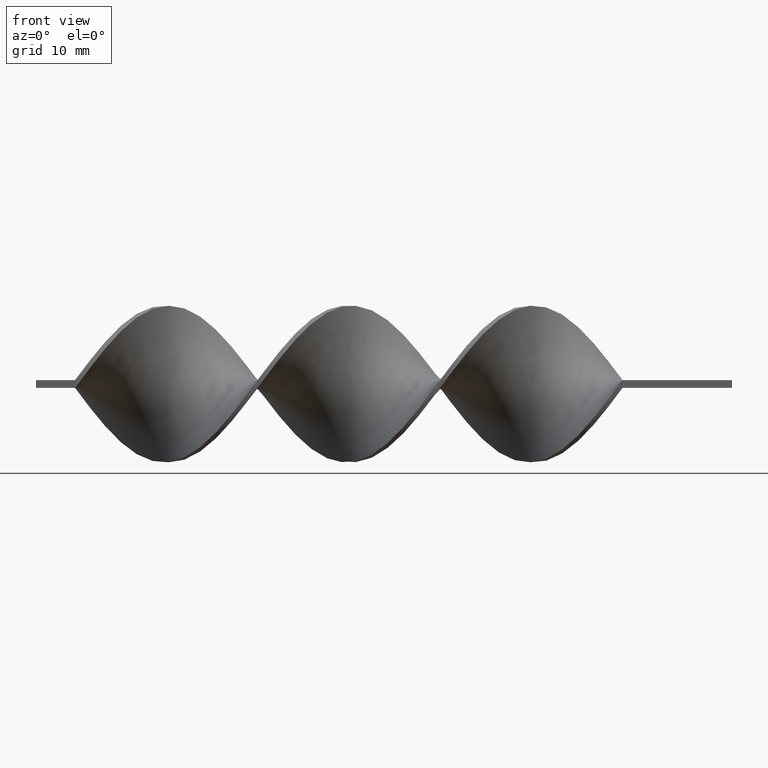
[diagram: clean part render]
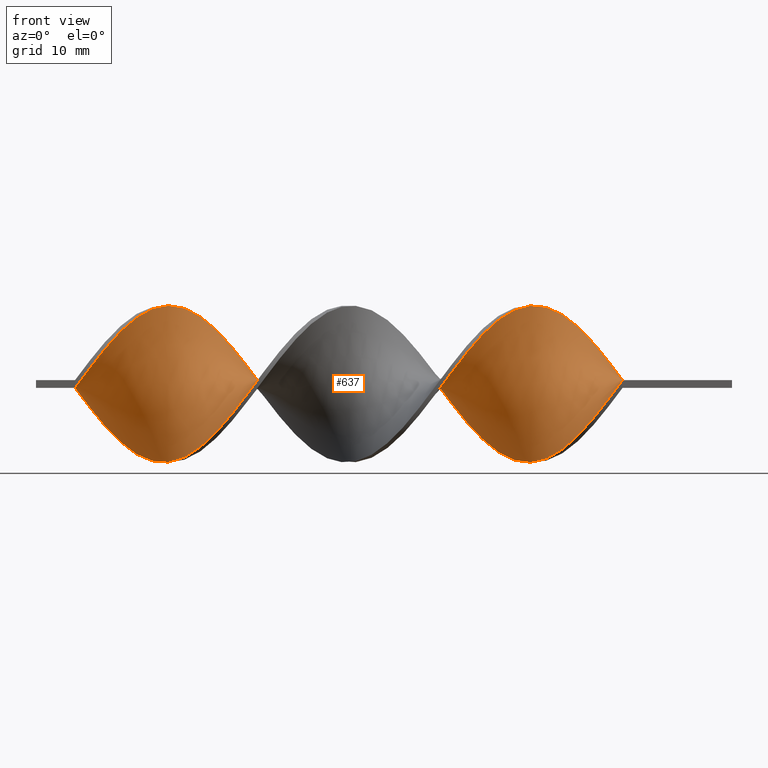
[diagram: same view with one face highlighted and labeled with its STEP entity id]
A machine part, front view. The second image highlights one B-rep face of the part: STEP entity #637.
In plain terms, the highlighted face is a freeform B-spline surface patch.
Its self-contained STEP definition (entity closure, byte-faithful):
#9 = CARTESIAN_POINT ( 'NONE',  ( -43.61538461538461320, 7.056934957752321047, 7.206086637525138450 ) ) ;
#15 = CARTESIAN_POINT ( 'NONE',  ( -57.07692307692307310, -8.622198670510213603, 5.089959733264296737 ) ) ;
#22 = CARTESIAN_POINT ( 'NONE',  ( -16.69230769230769695, 9.240231675844615467, 4.043035270954601579 ) ) ;
#30 = CARTESIAN_POINT ( 'NONE',  ( -59.76923076923077360, -9.939289008388872304, 1.714219832222610984 ) ) ;
#38 = CARTESIAN_POINT ( 'NONE',  ( -58.87179487179486870, -9.589760342116740333, 2.878627551588612388 ) ) ;
#48 = CARTESIAN_POINT ( 'NONE',  ( -59.76923076923077360, 10.06071099161113125, -0.7142198322226109841 ) ) ;
#52 = CARTESIAN_POINT ( 'NONE',  ( -69.64102564102564941, -4.013556991768067128, -9.172859983332880773 ) ) ;
#57 = CARTESIAN_POINT ( 'NONE',  ( -77.71794871794872961, -7.056934957752318383, 7.206086637525142891 ) ) ;
#60 = CARTESIAN_POINT ( 'NONE',  ( -74.12820512820510999, 1.921697069441246519, -9.901267393559574970 ) ) ;
#63 = CARTESIAN_POINT ( 'NONE',  ( -19.38461538461538325, 7.153546152590613438, 7.005481956493501805 ) ) ;
#65 = CARTESIAN_POINT ( 'NONE',  ( -30.15384615384615330, -6.092139400258385962, 7.945806285570986560 ) ) ;
#68 = CARTESIAN_POINT ( 'NONE',  ( -45.41025641025640880, 5.127343842764457982, 8.685525933616828453 ) ) ;
#73 = CARTESIAN_POINT ( 'NONE',  ( -32.84615384615384670, -8.576402663910499768, 5.307855779119662998 ) ) ;
#74 = CARTESIAN_POINT ( 'NONE',  ( -29.25641025641025905, -5.127343842764454429, 8.685525933616832006 ) ) ;
#77 = CARTESIAN_POINT ( 'NONE',  ( -26.56410256410256210, 0.7090123655042004369, -9.987357081108200418 ) ) ;
#82 = CARTESIAN_POINT ( 'NONE',  ( -47.20512820512820440, -1.921697069441249628, -9.901267393559574970 ) ) ;
#83 = CARTESIAN_POINT ( 'NONE',  ( -67.84615384615385381, 5.269155534364730720, 8.513871032302141373 ) ) ;
#94 =( BOUNDED_SURFACE ( )  B_SPLINE_SURFACE ( 1, 2, ( 
 ( #990, #847, #379, #730, #1249, #217, #722, #1356, #866, #373, #103, #635, #1590, #1487, #974, #611, #1232, #1102, #1479, #234, #739, #112, #618, #366, #1109, #1608, #998, #873, #162, #286, #1035, #154, #522, #9, #1266, #1518, #1253, #1381, #652, #528, #385, #145, #909, #759, #1021, #1136, #1506, #1142, #15, #544, #38, #30, #536, #894, #134, #1150, #1400, #397, #763, #1028, #1527, #887, #646, #1409, #1534, #640, #1388, #901, #265, #277, #1128, #258, #271, #405, #1014, #1513, #413, #392, #776 ),
 ( #1275, #1393, #1259, #22, #515, #139, #666, #659, #768, #783, #1009, #1283, #1159, #1185, #1580, #1571, #171, #74, #65, #1563, #1544, #1193, #571, #561, #1433, #1319, #450, #580, #441, #1072, #318, #197, #1291, #711, #687, #926, #1064, #944, #817, #1204, #301, #1168, #702, #553, #918, #953, #589, #677, #1449, #1442, #330, #48, #695, #826, #935, #1080, #1416, #1331, #1310, #207, #83, #292, #310, #790, #1046, #422, #1424, #800, #1177, #1301, #182, #57, #1055, #1553, #432, #810, #190, #356, #870 ) ),
 .UNSPECIFIED., .F., .F., .F. ) 
 B_SPLINE_SURFACE_WITH_KNOTS ( ( 2, 2 ),
 ( 3, 2, 2, 2, 2, 2, 2, 2, 2, 2, 2, 2, 2, 2, 2, 2, 2, 2, 2, 2, 2, 2, 2, 2, 2, 2, 2, 2, 2, 2, 2, 2, 2, 2, 2, 2, 2, 2, 2, 3 ),
 ( 0.000000000000000000, 1.000000000000000000 ),
 ( 0.000000000000000000, 0.01923076923076923184, 0.03846153846153846367, 0.05769230769230769551, 0.07692307692307692735, 0.09615384615384615918, 0.1153846153846153910, 0.1346153846153846090, 0.1538461538461538547, 0.1730769230769230727, 0.1923076923076923184, 0.2115384615384615363, 0.2307692307692307820, 0.2500000000000000000, 0.2692307692307692180, 0.2884615384615384359, 0.3076923076923077094, 0.3269230769230769273, 0.3461538461538461453, 0.3653846153846153633, 0.3846153846153846367, 0.4038461538461538547, 0.4230769230769230727, 0.4423076923076922906, 0.4615384615384615641, 0.4807692307692307820, 0.5000000000000000000, 0.5192307692307692735, 0.5384615384615384359, 0.5576923076923077094, 0.5769230769230768718, 0.5961538461538461453, 0.6153846153846154188, 0.6346153846153845812, 0.6538461538461538547, 0.6730769230769231282, 0.6923076923076922906, 0.7115384615384615641, 0.7307692307692307265, 0.7500000000000000000 ),
 .UNSPECIFIED. ) 
 GEOMETRIC_REPRESENTATION_ITEM ( )  RATIONAL_B_SPLINE_SURFACE ( (
 ( 1.000000000000000000, 0.9927088740980539727, 1.000000000000000000, 0.9927088740980539727, 1.000000000000000000, 0.9927088740980539727, 1.000000000000000000, 0.9927088740980539727, 1.000000000000000000, 0.9927088740980539727, 1.000000000000000000, 0.9927088740980539727, 1.000000000000000000, 0.9927088740980539727, 1.000000000000000000, 0.9927088740980539727, 1.000000000000000000, 0.9927088740980539727, 1.000000000000000000, 0.9927088740980539727, 1.000000000000000000, 0.9927088740980539727, 1.000000000000000000, 0.9927088740980539727, 1.000000000000000000, 0.9927088740980539727, 1.000000000000000000, 0.9927088740980539727, 1.000000000000000000, 0.9927088740980539727, 1.000000000000000000, 0.9927088740980539727, 1.000000000000000000, 0.9927088740980539727, 1.000000000000000000, 0.9927088740980539727, 1.000000000000000000, 0.9927088740980539727, 1.000000000000000000, 0.9927088740980539727, 1.000000000000000000, 0.9927088740980539727, 1.000000000000000000, 0.9927088740980539727, 1.000000000000000000, 0.9927088740980539727, 1.000000000000000000, 0.9927088740980539727, 1.000000000000000000, 0.9927088740980539727, 1.000000000000000000, 0.9927088740980539727, 1.000000000000000000, 0.9927088740980539727, 1.000000000000000000, 0.9927088740980539727, 1.000000000000000000, 0.9927088740980539727, 1.000000000000000000, 0.9927088740980539727, 1.000000000000000000, 0.9927088740980539727, 1.000000000000000000, 0.9927088740980539727, 1.000000000000000000, 0.9927088740980539727, 1.000000000000000000, 0.9927088740980539727, 1.000000000000000000, 0.9927088740980539727, 1.000000000000000000, 0.9927088740980539727, 1.000000000000000000, 0.9927088740980539727, 1.000000000000000000, 0.9927088740980539727, 1.000000000000000000, 0.9927088740980539727, 1.000000000000000000),
 ( 1.000000000000000000, 0.9927088740980539727, 1.000000000000000000, 0.9927088740980539727, 1.000000000000000000, 0.9927088740980539727, 1.000000000000000000, 0.9927088740980539727, 1.000000000000000000, 0.9927088740980539727, 1.000000000000000000, 0.9927088740980539727, 1.000000000000000000, 0.9927088740980539727, 1.000000000000000000, 0.9927088740980539727, 1.000000000000000000, 0.9927088740980539727, 1.000000000000000000, 0.9927088740980539727, 1.000000000000000000, 0.9927088740980539727, 1.000000000000000000, 0.9927088740980539727, 1.000000000000000000, 0.9927088740980539727, 1.000000000000000000, 0.9927088740980539727, 1.000000000000000000, 0.9927088740980539727, 1.000000000000000000, 0.9927088740980539727, 1.000000000000000000, 0.9927088740980539727, 1.000000000000000000, 0.9927088740980539727, 1.000000000000000000, 0.9927088740980539727, 1.000000000000000000, 0.9927088740980539727, 1.000000000000000000, 0.9927088740980539727, 1.000000000000000000, 0.9927088740980539727, 1.000000000000000000, 0.9927088740980539727, 1.000000000000000000, 0.9927088740980539727, 1.000000000000000000, 0.9927088740980539727, 1.000000000000000000, 0.9927088740980539727, 1.000000000000000000, 0.9927088740980539727, 1.000000000000000000, 0.9927088740980539727, 1.000000000000000000, 0.9927088740980539727, 1.000000000000000000, 0.9927088740980539727, 1.000000000000000000, 0.9927088740980539727, 1.000000000000000000, 0.9927088740980539727, 1.000000000000000000, 0.9927088740980539727, 1.000000000000000000, 0.9927088740980539727, 1.000000000000000000, 0.9927088740980539727, 1.000000000000000000, 0.9927088740980539727, 1.000000000000000000, 0.9927088740980539727, 1.000000000000000000, 0.9927088740980539727, 1.000000000000000000, 0.9927088740980539727, 1.000000000000000000) ) ) 
 REPRESENTATION_ITEM ( '' )  SURFACE ( )  );
#97 = CARTESIAN_POINT ( 'NONE',  ( -16.69230769230769340, -9.597441021197470334, -3.101151636102497555 ) ) ;
#99 = CARTESIAN_POINT ( 'NONE',  ( -65.15384615384614619, 8.004165665175815292, 6.136884195573979461 ) ) ;
#103 = CARTESIAN_POINT ( 'NONE',  ( -22.97435897435897090, -4.013556991768067128, -9.172859983332880773 ) ) ;
#109 = CARTESIAN_POINT ( 'NONE',  ( -40.92307692307691980, -8.622198670510215379, -5.089959733264289632 ) ) ;
#112 = CARTESIAN_POINT ( 'NONE',  ( -32.84615384615384670, 8.004165665175813515, -6.136884195573980350 ) ) ;
#113 = CARTESIAN_POINT ( 'NONE',  ( -76.82051282051281760, 5.269155534364728055, -8.513871032302143149 ) ) ;
#116 = CARTESIAN_POINT ( 'NONE',  ( -53.48717948717948900, 6.092139400258383297, -7.945806285570988337 ) ) ;
#134 = CARTESIAN_POINT ( 'NONE',  ( -62.46153846153845990, -9.829076006404301680, -1.907685734162551494 ) ) ;
#139 = CARTESIAN_POINT ( 'NONE',  ( -18.48717948717948545, 8.004165665175815292, 6.136884195573979461 ) ) ;
#145 = CARTESIAN_POINT ( 'NONE',  ( -50.79487179487178850, -1.921697069441245631, 9.901267393559576746 ) ) ;
#154 = CARTESIAN_POINT ( 'NONE',  ( -41.82051282051281760, 8.576402663910497992, 5.307855779119661221 ) ) ;
#162 = CARTESIAN_POINT ( 'NONE',  ( -39.12820512820512420, 9.829076006404298127, 1.907685734162548385 ) ) ;
#170 = CARTESIAN_POINT ( 'NONE',  ( -17.58974358974358765, 8.622198670510211826, 5.089959733264290520 ) ) ;
#171 = CARTESIAN_POINT ( 'NONE',  ( -28.35897435897435770, -4.013556991768063575, 9.172859983332880773 ) ) ;
#175 = CARTESIAN_POINT ( 'NONE',  ( -54.38461538461538680, -6.302926640005405368, 7.874079717413033030 ) ) ;
#181 = CARTESIAN_POINT ( 'NONE',  ( -15.79487179487179205, 9.589760342116738556, 2.878627551588603062 ) ) ;
#182 = CARTESIAN_POINT ( 'NONE',  ( -76.82051282051281760, -6.092139400258385962, 7.945806285570986560 ) ) ;
#186 = CARTESIAN_POINT ( 'NONE',  ( -70.53846153846153300, -2.899770140771675830, -9.660194033048927764 ) ) ;
#189 = CARTESIAN_POINT ( 'NONE',  ( -13.99999999999999822, 9.999999999999998224, 0.5000000000000000000 ) ) ;
#190 = CARTESIAN_POINT ( 'NONE',  ( -82.20512820512820440, -9.829076006404299903, 1.907685734162555047 ) ) ;
#193 = CARTESIAN_POINT ( 'NONE',  ( -31.05128205128205465, 6.302926640005407144, -7.874079717413029478 ) ) ;
#197 = CARTESIAN_POINT ( 'NONE',  ( -41.82051282051281760, -8.004165665175818845, -6.136884195573978573 ) ) ;
#201 = CARTESIAN_POINT ( 'NONE',  ( -36.43589743589743790, 9.939289008388868751, -1.714219832222609874 ) ) ;
#206 = CARTESIAN_POINT ( 'NONE',  ( -80.41025641025640880, -9.086921842553984163, 4.204503707611081609 ) ) ;
#207 = CARTESIAN_POINT ( 'NONE',  ( -66.94871794871794179, 6.302926640005411585, 7.874079717413027701 ) ) ;
#208 = VERTEX_POINT ( 'NONE', #535 ) ;
#210 = CARTESIAN_POINT ( 'NONE',  ( -22.97435897435897090, -4.013556991768067128, -9.172859983332880773 ) ) ;
#214 = CARTESIAN_POINT ( 'NONE',  ( -83.10256410256410220, -10.06071099161113480, 0.7142198322226099849 ) ) ;
#217 = CARTESIAN_POINT ( 'NONE',  ( -18.48717948717948545, -8.576402663910501545, -5.307855779119662110 ) ) ;
#222 = CARTESIAN_POINT ( 'NONE',  ( -13.99999999999999645, -10.00000000000000178, 0.5000000000000000000 ) ) ;
#223 = CARTESIAN_POINT ( 'NONE',  ( -40.02564102564102200, -9.240231675844619019, -4.043035270954598914 ) ) ;
#234 = CARTESIAN_POINT ( 'NONE',  ( -31.05128205128205821, 6.302926640005407144, -7.874079717413028590 ) ) ;
#239 = CARTESIAN_POINT ( 'NONE',  ( -54.38461538461538680, 7.056934957752313053, -7.206086637525145555 ) ) ;
#244 = CARTESIAN_POINT ( 'NONE',  ( -83.10256410256410220, 9.939289008388868751, -1.714219832222609874 ) ) ;
#258 = CARTESIAN_POINT ( 'NONE',  ( -77.71794871794872961, 6.302926640005407144, -7.874079717413028590 ) ) ;
#265 = CARTESIAN_POINT ( 'NONE',  ( -75.02564102564102200, 3.078540749082645966, -9.527464870375414563 ) ) ;
#271 = CARTESIAN_POINT ( 'NONE',  ( -78.61538461538461320, 7.153546152590610774, -7.005481956493504470 ) ) ;
#273 = VERTEX_POINT ( 'NONE', #1265 ) ;
#277 = CARTESIAN_POINT ( 'NONE',  ( -75.92307692307693401, 4.235384428724049855, -9.153662347191257709 ) ) ;
#280 = VECTOR ( 'NONE', #612, 1000.000000000000000 ) ;
#282 = B_SPLINE_CURVE_WITH_KNOTS ( 'NONE', 3,
 ( #753, #1123, #1215, #484 ),
 .UNSPECIFIED., .F., .F.,
 ( 4, 4 ),
 ( 0.000000000000000000, 1.000000000000000000 ),
 .UNSPECIFIED. ) ;
#286 = CARTESIAN_POINT ( 'NONE',  ( -40.02564102564102200, 9.597441021197468558, 3.101151636102494003 ) ) ;
#292 = CARTESIAN_POINT ( 'NONE',  ( -68.74358974358973740, 4.235384428724050743, 9.153662347191257709 ) ) ;
#297 = CARTESIAN_POINT ( 'NONE',  ( -19.38461538461538325, -7.816668810831409964, -6.256971208322401168 ) ) ;
#301 = CARTESIAN_POINT ( 'NONE',  ( -49.89743589743589069, 1.701721239602248970, -9.866820400852880368 ) ) ;
#304 = CARTESIAN_POINT ( 'NONE',  ( -57.07692307692307310, -8.622198670510213603, 5.089959733264296737 ) ) ;
#310 = CARTESIAN_POINT ( 'NONE',  ( -69.64102564102564941, 3.078540749082649519, 9.527464870375414563 ) ) ;
#311 = ORIENTED_EDGE ( 'NONE', *, *, #1118, .F. ) ;
#313 = CARTESIAN_POINT ( 'NONE',  ( -20.28205128205128460, -7.056934957752321935, -7.206086637525141114 ) ) ;
#318 = CARTESIAN_POINT ( 'NONE',  ( -40.92307692307691980, -8.622198670510215379, -5.089959733264289632 ) ) ;
#319 = VERTEX_POINT ( 'NONE', #694 ) ;
#322 = CARTESIAN_POINT ( 'NONE',  ( -27.46153846153846345, 1.921697069441246519, -9.901267393559574970 ) ) ;
#327 = CARTESIAN_POINT ( 'NONE',  ( -36.43589743589743790, -10.06071099161113480, 0.7142198322226099849 ) ) ;
#328 = EDGE_CURVE ( 'NONE', #1038, #208, #1153, .T. ) ;
#330 = CARTESIAN_POINT ( 'NONE',  ( -58.87179487179486870, 9.829076006404296351, -1.907685734162560820 ) ) ;
#333 = CARTESIAN_POINT ( 'NONE',  ( -51.69230769230769340, -3.078540749082649963, 9.527464870375414563 ) ) ;
#337 = CARTESIAN_POINT ( 'NONE',  ( -64.25641025641024839, 8.622198670510211826, 5.089959733264290520 ) ) ;
#346 = CARTESIAN_POINT ( 'NONE',  ( -50.79487179487178850, 2.899770140771668281, -9.660194033048929541 ) ) ;
#353 = CARTESIAN_POINT ( 'NONE',  ( -18.48717948717948545, -8.576402663910501545, -5.307855779119662110 ) ) ;
#355 = CARTESIAN_POINT ( 'NONE',  ( -75.02564102564102200, -4.013556991768063575, 9.172859983332880773 ) ) ;
#356 = CARTESIAN_POINT ( 'NONE',  ( -83.10256410256410220, -10.06071099161113480, 0.7142198322226098739 ) ) ;
#362 = CARTESIAN_POINT ( 'NONE',  ( -79.51282051282051100, -8.576402663910499768, 5.307855779119662998 ) ) ;
#366 = CARTESIAN_POINT ( 'NONE',  ( -34.64102564102564230, 9.240231675844613690, -4.043035270954605132 ) ) ;
#369 = CARTESIAN_POINT ( 'NONE',  ( -76.82051282051281760, -6.092139400258385962, 7.945806285570986560 ) ) ;
#373 = CARTESIAN_POINT ( 'NONE',  ( -22.07692307692308376, -5.127343842764454429, -8.685525933616832006 ) ) ;
#374 = CARTESIAN_POINT ( 'NONE',  ( -77.71794871794874382, 6.302926640005407144, -7.874079717413029478 ) ) ;
#379 = CARTESIAN_POINT ( 'NONE',  ( -15.79487179487179205, -9.829076006404301680, -1.907685734162551494 ) ) ;
#385 = CARTESIAN_POINT ( 'NONE',  ( -49.89743589743589069, -0.7090123655041976614, 9.987357081108202195 ) ) ;
#392 = CARTESIAN_POINT ( 'NONE',  ( -83.10256410256410220, 9.939289008388868751, -1.714219832222609874 ) ) ;
#397 = CARTESIAN_POINT ( 'NONE',  ( -65.15384615384614619, -8.576402663910501545, -5.307855779119662110 ) ) ;
#405 = CARTESIAN_POINT ( 'NONE',  ( -79.51282051282051100, 8.004165665175813515, -6.136884195573980350 ) ) ;
#413 = CARTESIAN_POINT ( 'NONE',  ( -82.20512820512820440, 9.589760342116736780, -2.878627551588606615 ) ) ;
#417 = CARTESIAN_POINT ( 'NONE',  ( -41.82051282051281760, 8.576402663910497992, 5.307855779119661221 ) ) ;
#422 = CARTESIAN_POINT ( 'NONE',  ( -72.33333333333332860, -0.5036723384328420927, 10.07344676865682764 ) ) ;
#427 = CARTESIAN_POINT ( 'NONE',  ( -52.58974358974359120, -4.235384428724044525, 9.153662347191259485 ) ) ;
#432 = CARTESIAN_POINT ( 'NONE',  ( -80.41025641025640880, -9.086921842553984163, 4.204503707611081609 ) ) ;
#435 = CARTESIAN_POINT ( 'NONE',  ( -63.35897435897436480, -9.597441021197470334, -3.101151636102497555 ) ) ;
#440 = CARTESIAN_POINT ( 'NONE',  ( -33.74358974358974450, -9.086921842553984163, 4.204503707611081609 ) ) ;
#441 = CARTESIAN_POINT ( 'NONE',  ( -39.12820512820512420, -9.589760342116745662, -2.878627551588600397 ) ) ;
#444 = CARTESIAN_POINT ( 'NONE',  ( -56.17948717948717530, -8.004165665175817068, 6.136884195573983014 ) ) ;
#446 =( BOUNDED_CURVE ( )  B_SPLINE_CURVE ( 2, ( #222, #1218, #1474, #97, #1594, #353, #297, #313, #453, #565, #210, #1041, #1075, #938, #77, #322, #1323, #1559, #956, #193, #583, #820, #574, #698, #1549, #201, #705, #681, #1428, #1574, #714, #417, #557, #1189, #1172, #68, #922, #1539, #1060, #1198, #803, #1453, #333, #427, #947, #175, #831, #444, #304, #931, #813, #1420, #1305, #1334, #1067, #435, #1207, #548, #794, #1296, #1313, #1437, #52, #186, #691, #1051, #1181, #60, #1567, #1445, #113, #374, #493, #1243, #867, #592, #754, #244, #723 ),
 .UNSPECIFIED., .F., .T. ) 
 B_SPLINE_CURVE_WITH_KNOTS ( ( 3, 2, 2, 2, 2, 2, 2, 2, 2, 2, 2, 2, 2, 2, 2, 2, 2, 2, 2, 2, 2, 2, 2, 2, 2, 2, 2, 2, 2, 2, 2, 2, 2, 2, 2, 2, 2, 2, 2, 3 ),
 ( 0.000000000000000000, 0.01923076923076923184, 0.03846153846153846367, 0.05769230769230768857, 0.07692307692307692735, 0.09615384615384615918, 0.1153846153846153771, 0.1346153846153846090, 0.1538461538461538547, 0.1730769230769230449, 0.1923076923076923184, 0.2115384615384615363, 0.2307692307692307543, 0.2500000000000000000, 0.2692307692307692180, 0.2884615384615384359, 0.3076923076923077094, 0.3269230769230769273, 0.3461538461538460898, 0.3653846153846153633, 0.3846153846153846367, 0.4038461538461539102, 0.4230769230769230727, 0.4423076923076922906, 0.4615384615384615086, 0.4807692307692307820, 0.5000000000000000000, 0.5192307692307692735, 0.5384615384615384359, 0.5576923076923077094, 0.5769230769230768718, 0.5961538461538461453, 0.6153846153846154188, 0.6346153846153845812, 0.6538461538461538547, 0.6730769230769230171, 0.6923076923076921796, 0.7115384615384615641, 0.7307692307692307265, 0.7500000000000000000 ),
 .UNSPECIFIED. ) 
 CURVE ( )  GEOMETRIC_REPRESENTATION_ITEM ( )  RATIONAL_B_SPLINE_CURVE ( ( 1.000000000000000000, 0.9927088740980539727, 1.000000000000000000, 0.9927088740980539727, 1.000000000000000000, 0.9927088740980539727, 1.000000000000000000, 0.9927088740980539727, 1.000000000000000000, 0.9927088740980539727, 1.000000000000000000, 0.9927088740980539727, 1.000000000000000000, 0.9927088740980539727, 1.000000000000000000, 0.9927088740980539727, 1.000000000000000000, 0.9927088740980539727, 1.000000000000000000, 0.9927088740980539727, 1.000000000000000000, 0.9927088740980539727, 1.000000000000000000, 0.9927088740980539727, 1.000000000000000000, 0.9927088740980539727, 1.000000000000000000, 0.9927088740980539727, 1.000000000000000000, 0.9927088740980539727, 1.000000000000000000, 0.9927088740980539727, 1.000000000000000000, 0.9927088740980539727, 1.000000000000000000, 0.9927088740980539727, 1.000000000000000000, 0.9927088740980539727, 1.000000000000000000, 0.9927088740980539727, 1.000000000000000000, 0.9927088740980539727, 1.000000000000000000, 0.9927088740980539727, 1.000000000000000000, 0.9927088740980539727, 1.000000000000000000, 0.9927088740980539727, 1.000000000000000000, 0.9927088740980539727, 1.000000000000000000, 0.9927088740980539727, 1.000000000000000000, 0.9927088740980539727, 1.000000000000000000, 0.9927088740980539727, 1.000000000000000000, 0.9927088740980539727, 1.000000000000000000, 0.9927088740980539727, 1.000000000000000000, 0.9927088740980539727, 1.000000000000000000, 0.9927088740980539727, 1.000000000000000000, 0.9927088740980539727, 1.000000000000000000, 0.9927088740980539727, 1.000000000000000000, 0.9927088740980539727, 1.000000000000000000, 0.9927088740980539727, 1.000000000000000000, 0.9927088740980539727, 1.000000000000000000, 0.9927088740980539727, 1.000000000000000000, 0.9927088740980539727, 1.000000000000000000 ) ) 
 REPRESENTATION_ITEM ( '' )  );
#450 = CARTESIAN_POINT ( 'NONE',  ( -37.33333333333332860, -10.00000000000000178, -0.4999999999999988343 ) ) ;
#453 = CARTESIAN_POINT ( 'NONE',  ( -21.17948717948717885, -6.092139400258388626, -7.945806285570984784 ) ) ;
#457 = CARTESIAN_POINT ( 'NONE',  ( -57.97435897435897090, 9.597441021197465005, -3.101151636102501552 ) ) ;
#469 = CARTESIAN_POINT ( 'NONE',  ( -57.07692307692307310, 9.086921842553978834, -4.204503707611086938 ) ) ;
#481 = CARTESIAN_POINT ( 'NONE',  ( -63.35897435897436480, 9.240231675844613690, 4.043035270954601579 ) ) ;
#484 = CARTESIAN_POINT ( 'NONE',  ( -84.00000000000000000, -10.00000000000000178, -0.4999999999999988343 ) ) ;
#489 = CARTESIAN_POINT ( 'NONE',  ( -42.71794871794872250, -7.153546152590616991, -7.005481956493500029 ) ) ;
#493 = CARTESIAN_POINT ( 'NONE',  ( -78.61538461538461320, 7.153546152590610774, -7.005481956493504470 ) ) ;
#496 = CARTESIAN_POINT ( 'NONE',  ( -74.12820512820510999, -2.899770140771674498, 9.660194033048927764 ) ) ;
#515 = CARTESIAN_POINT ( 'NONE',  ( -17.58974358974358765, 8.622198670510211826, 5.089959733264290520 ) ) ;
#522 = CARTESIAN_POINT ( 'NONE',  ( -42.71794871794872250, 7.816668810831409964, 6.256971208322399391 ) ) ;
#528 = CARTESIAN_POINT ( 'NONE',  ( -49.00000000000000711, 0.5036723384328420927, 10.07344676865682764 ) ) ;
#535 = CARTESIAN_POINT ( 'NONE',  ( -84.00000000000000000, -10.00000000000000178, -0.4999999999999988343 ) ) ;
#536 = CARTESIAN_POINT ( 'NONE',  ( -60.66666666666666430, -10.00000000000000178, 0.5000000000000000000 ) ) ;
#544 = CARTESIAN_POINT ( 'NONE',  ( -57.97435897435897090, -9.240231675844617243, 4.043035270954606020 ) ) ;
#548 = CARTESIAN_POINT ( 'NONE',  ( -65.15384615384614619, -8.576402663910501545, -5.307855779119662110 ) ) ;
#552 = CARTESIAN_POINT ( 'NONE',  ( -26.56410256410256210, -1.701721239602257185, 9.866820400852878592 ) ) ;
#553 = CARTESIAN_POINT ( 'NONE',  ( -52.58974358974358410, 5.127343842764449100, -8.685525933616833782 ) ) ;
#557 = CARTESIAN_POINT ( 'NONE',  ( -42.71794871794872250, 7.816668810831409964, 6.256971208322399391 ) ) ;
#561 = CARTESIAN_POINT ( 'NONE',  ( -34.64102564102564230, -9.597441021197468558, 3.101151636102500664 ) ) ;
#565 = CARTESIAN_POINT ( 'NONE',  ( -22.07692307692308020, -5.127343842764455317, -8.685525933616832006 ) ) ;
#570 = CARTESIAN_POINT ( 'NONE',  ( -24.76923076923076650, 0.7090123655042038786, 9.987357081108200418 ) ) ;
#571 = CARTESIAN_POINT ( 'NONE',  ( -33.74358974358974450, -9.086921842553984163, 4.204503707611081609 ) ) ;
#574 = CARTESIAN_POINT ( 'NONE',  ( -33.74358974358974450, 8.622198670510211826, -5.089959733264292296 ) ) ;
#580 = CARTESIAN_POINT ( 'NONE',  ( -38.23076923076922640, -9.939289008388872304, -1.714219832222602991 ) ) ;
#583 = CARTESIAN_POINT ( 'NONE',  ( -31.94871794871794535, 7.153546152590610774, -7.005481956493504470 ) ) ;
#588 = CARTESIAN_POINT ( 'NONE',  ( -60.66666666666666430, 9.999999999999998224, 0.5000000000000000000 ) ) ;
#589 = CARTESIAN_POINT ( 'NONE',  ( -55.28205128205128460, 7.816668810831404635, -6.256971208322405609 ) ) ;
#592 = CARTESIAN_POINT ( 'NONE',  ( -81.30769230769232081, 9.240231675844611914, -4.043035270954604243 ) ) ;
#595 = EDGE_CURVE ( 'NONE', #319, #208, #282, .T. ) ;
#607 = CARTESIAN_POINT ( 'NONE',  ( -62.46153846153845990, 9.589760342116738556, 2.878627551588603062 ) ) ;
#611 = CARTESIAN_POINT ( 'NONE',  ( -27.46153846153846345, 1.921697069441246519, -9.901267393559574970 ) ) ;
#612 = DIRECTION ( 'NONE',  ( 8.673617379884035472E-17, -1.000000000000000000, 0.000000000000000000 ) ) ;
#615 = CARTESIAN_POINT ( 'NONE',  ( -46.30769230769230660, -3.078540749082653072, -9.527464870375414563 ) ) ;
#618 = CARTESIAN_POINT ( 'NONE',  ( -33.74358974358974450, 8.622198670510211826, -5.089959733264292296 ) ) ;
#620 = CARTESIAN_POINT ( 'NONE',  ( -13.99999999999999822, 9.999999999999998224, 0.5000000000000000000 ) ) ;
#622 = CARTESIAN_POINT ( 'NONE',  ( -68.74358974358973740, 4.235384428724049855, 9.153662347191257709 ) ) ;
#635 = CARTESIAN_POINT ( 'NONE',  ( -23.87179487179487580, -2.899770140771675830, -9.660194033048927764 ) ) ;
#637 = ADVANCED_FACE ( 'NONE', ( #1093 ), #94, .T. ) ;
#640 = CARTESIAN_POINT ( 'NONE',  ( -72.33333333333332860, -0.5036723384328433140, -10.07344676865682764 ) ) ;
#646 = CARTESIAN_POINT ( 'NONE',  ( -69.64102564102564941, -4.013556991768067128, -9.172859983332880773 ) ) ;
#647 = EDGE_LOOP ( 'NONE', ( #811, #1137, #1478, #311 ) ) ;
#652 = CARTESIAN_POINT ( 'NONE',  ( -48.10256410256410220, 1.701721239602261404, 9.866820400852876816 ) ) ;
#659 = CARTESIAN_POINT ( 'NONE',  ( -20.28205128205128460, 6.302926640005411585, 7.874079717413027701 ) ) ;
#666 = CARTESIAN_POINT ( 'NONE',  ( -19.38461538461538325, 7.153546152590613438, 7.005481956493501805 ) ) ;
#677 = CARTESIAN_POINT ( 'NONE',  ( -56.17948717948717530, 8.576402663910496216, -5.307855779119664774 ) ) ;
#681 = CARTESIAN_POINT ( 'NONE',  ( -38.23076923076922640, 10.06071099161113125, 0.7142198322226029905 ) ) ;
#686 = CARTESIAN_POINT ( 'NONE',  ( -30.15384615384615330, -6.092139400258385962, 7.945806285570986560 ) ) ;
#687 = CARTESIAN_POINT ( 'NONE',  ( -44.51282051282051100, -5.269155534364732496, -8.513871032302141373 ) ) ;
#691 = CARTESIAN_POINT ( 'NONE',  ( -71.43589743589743080, -1.701721239602260516, -9.866820400852878592 ) ) ;
#694 = CARTESIAN_POINT ( 'NONE',  ( -84.00000000000000000, 9.999999999999998224, -0.5000000000000012212 ) ) ;
#695 = CARTESIAN_POINT ( 'NONE',  ( -60.66666666666666430, 9.999999999999998224, 0.5000000000000000000 ) ) ;
#698 = CARTESIAN_POINT ( 'NONE',  ( -34.64102564102564230, 9.240231675844611914, -4.043035270954604243 ) ) ;
#701 = CARTESIAN_POINT ( 'NONE',  ( -22.07692307692308020, 4.235384428724049855, 9.153662347191257709 ) ) ;
#702 = CARTESIAN_POINT ( 'NONE',  ( -51.69230769230769340, 4.013556991768062687, -9.172859983332880773 ) ) ;
#705 = CARTESIAN_POINT ( 'NONE',  ( -37.33333333333332860, 9.999999999999998224, -0.5000000000000012212 ) ) ;
#710 = CARTESIAN_POINT ( 'NONE',  ( -66.94871794871795601, 6.302926640005410697, 7.874079717413027701 ) ) ;
#711 = CARTESIAN_POINT ( 'NONE',  ( -43.61538461538461320, -6.302926640005416026, -7.874079717413025925 ) ) ;
#714 = CARTESIAN_POINT ( 'NONE',  ( -40.92307692307691980, 9.086921842553980611, 4.204503707611078944 ) ) ;
#722 = CARTESIAN_POINT ( 'NONE',  ( -19.38461538461538325, -7.816668810831409964, -6.256971208322401168 ) ) ;
#723 = CARTESIAN_POINT ( 'NONE',  ( -84.00000000000000000, 9.999999999999998224, -0.5000000000000012212 ) ) ;
#725 = CARTESIAN_POINT ( 'NONE',  ( -13.99999999999999822, 9.999999999999998224, 0.5000000000000000000 ) ) ;
#726 = CARTESIAN_POINT ( 'NONE',  ( -73.23076923076924061, -1.701721239602257185, 9.866820400852878592 ) ) ;
#730 = CARTESIAN_POINT ( 'NONE',  ( -16.69230769230769695, -9.597441021197470334, -3.101151636102497555 ) ) ;
#734 = CARTESIAN_POINT ( 'NONE',  ( -45.41025641025640880, -4.235384428724056960, -9.153662347191254156 ) ) ;
#739 = CARTESIAN_POINT ( 'NONE',  ( -31.94871794871794535, 7.153546152590610774, -7.005481956493504470 ) ) ;
#743 = CARTESIAN_POINT ( 'NONE',  ( -66.05128205128204399, 7.153546152590613438, 7.005481956493501805 ) ) ;
#753 = CARTESIAN_POINT ( 'NONE',  ( -84.00000000000000000, 9.999999999999998224, -0.5000000000000012212 ) ) ;
#754 = CARTESIAN_POINT ( 'NONE',  ( -82.20512820512820440, 9.589760342116736780, -2.878627551588606615 ) ) ;
#759 = CARTESIAN_POINT ( 'NONE',  ( -52.58974358974358410, -4.235384428724044525, 9.153662347191259485 ) ) ;
#763 = CARTESIAN_POINT ( 'NONE',  ( -66.05128205128204399, -7.816668810831409964, -6.256971208322401168 ) ) ;
#768 = CARTESIAN_POINT ( 'NONE',  ( -21.17948717948717885, 5.269155534364730720, 8.513871032302141373 ) ) ;
#776 = CARTESIAN_POINT ( 'NONE',  ( -84.00000000000000000, 9.999999999999998224, -0.5000000000000012212 ) ) ;
#783 = CARTESIAN_POINT ( 'NONE',  ( -22.07692307692308376, 4.235384428724050743, 9.153662347191257709 ) ) ;
#790 = CARTESIAN_POINT ( 'NONE',  ( -70.53846153846153300, 1.921697069441247852, 9.901267393559574970 ) ) ;
#794 = CARTESIAN_POINT ( 'NONE',  ( -66.05128205128204399, -7.816668810831409964, -6.256971208322401168 ) ) ;
#799 = CARTESIAN_POINT ( 'NONE',  ( -20.28205128205128460, 6.302926640005410697, 7.874079717413027701 ) ) ;
#800 = CARTESIAN_POINT ( 'NONE',  ( -74.12820512820512420, -2.899770140771674498, 9.660194033048927764 ) ) ;
#803 = CARTESIAN_POINT ( 'NONE',  ( -49.89743589743589069, -0.7090123655041976614, 9.987357081108202195 ) ) ;
#810 = CARTESIAN_POINT ( 'NONE',  ( -81.30769230769233502, -9.597441021197468558, 3.101151636102500664 ) ) ;
#811 = ORIENTED_EDGE ( 'NONE', *, *, #1165, .F. ) ;
#813 = CARTESIAN_POINT ( 'NONE',  ( -58.87179487179486870, -9.589760342116740333, 2.878627551588612388 ) ) ;
#817 = CARTESIAN_POINT ( 'NONE',  ( -48.10256410256410220, -0.7090123655042099848, -9.987357081108202195 ) ) ;
#820 = CARTESIAN_POINT ( 'NONE',  ( -32.84615384615384670, 8.004165665175813515, -6.136884195573980350 ) ) ;
#825 = CARTESIAN_POINT ( 'NONE',  ( -37.33333333333332860, -10.00000000000000178, -0.4999999999999988343 ) ) ;
#826 = CARTESIAN_POINT ( 'NONE',  ( -61.56410256410256920, 9.939289008388868751, 1.714219832222605433 ) ) ;
#831 = CARTESIAN_POINT ( 'NONE',  ( -55.28205128205128460, -7.153546152590610774, 7.005481956493506246 ) ) ;
#847 = CARTESIAN_POINT ( 'NONE',  ( -14.89743589743589602, -10.06071099161113480, -0.7142198322226053220 ) ) ;
#854 = CARTESIAN_POINT ( 'NONE',  ( -43.61538461538461320, -6.302926640005415138, -7.874079717413025925 ) ) ;
#862 = CARTESIAN_POINT ( 'NONE',  ( -41.82051282051281760, -8.004165665175818845, -6.136884195573978573 ) ) ;
#866 = CARTESIAN_POINT ( 'NONE',  ( -21.17948717948717885, -6.092139400258388626, -7.945806285570984784 ) ) ;
#867 = CARTESIAN_POINT ( 'NONE',  ( -80.41025641025640880, 8.622198670510211826, -5.089959733264292296 ) ) ;
#870 = CARTESIAN_POINT ( 'NONE',  ( -84.00000000000000000, -10.00000000000000178, -0.4999999999999988343 ) ) ;
#873 = CARTESIAN_POINT ( 'NONE',  ( -38.23076923076922640, 10.06071099161113125, 0.7142198322226029905 ) ) ;
#887 = CARTESIAN_POINT ( 'NONE',  ( -68.74358974358973740, -5.127343842764454429, -8.685525933616832006 ) ) ;
#894 = CARTESIAN_POINT ( 'NONE',  ( -61.56410256410256920, -10.06071099161113480, -0.7142198322226053220 ) ) ;
#901 = CARTESIAN_POINT ( 'NONE',  ( -74.12820512820512420, 1.921697069441246519, -9.901267393559574970 ) ) ;
#909 = CARTESIAN_POINT ( 'NONE',  ( -51.69230769230769340, -3.078540749082649963, 9.527464870375414563 ) ) ;
#917 = CARTESIAN_POINT ( 'NONE',  ( -14.89743589743589602, 9.939289008388868751, 1.714219832222605433 ) ) ;
#918 = CARTESIAN_POINT ( 'NONE',  ( -53.48717948717948900, 6.092139400258383297, -7.945806285570988337 ) ) ;
#922 = CARTESIAN_POINT ( 'NONE',  ( -46.30769230769230660, 4.013556991768065352, 9.172859983332880773 ) ) ;
#926 = CARTESIAN_POINT ( 'NONE',  ( -45.41025641025640880, -4.235384428724057848, -9.153662347191254156 ) ) ;
#931 = CARTESIAN_POINT ( 'NONE',  ( -57.97435897435897090, -9.240231675844615467, 4.043035270954605132 ) ) ;
#935 = CARTESIAN_POINT ( 'NONE',  ( -62.46153846153845990, 9.589760342116738556, 2.878627551588603062 ) ) ;
#938 = CARTESIAN_POINT ( 'NONE',  ( -25.66666666666666785, -0.5036723384328433140, -10.07344676865682942 ) ) ;
#944 = CARTESIAN_POINT ( 'NONE',  ( -47.20512820512820440, -1.921697069441249406, -9.901267393559574970 ) ) ;
#947 = CARTESIAN_POINT ( 'NONE',  ( -53.48717948717948900, -5.269155534364728943, 8.513871032302144926 ) ) ;
#952 = CARTESIAN_POINT ( 'NONE',  ( -31.05128205128205465, -7.056934957752318383, 7.206086637525142891 ) ) ;
#953 = CARTESIAN_POINT ( 'NONE',  ( -54.38461538461538680, 7.056934957752313942, -7.206086637525145555 ) ) ;
#956 = CARTESIAN_POINT ( 'NONE',  ( -30.15384615384615330, 5.269155534364728055, -8.513871032302143149 ) ) ;
#961 = CARTESIAN_POINT ( 'NONE',  ( -81.30769230769232081, -9.597441021197468558, 3.101151636102500220 ) ) ;
#970 = CARTESIAN_POINT ( 'NONE',  ( -82.20512820512820440, -9.829076006404299903, 1.907685734162555047 ) ) ;
#974 = CARTESIAN_POINT ( 'NONE',  ( -26.56410256410256210, 0.7090123655042004369, -9.987357081108200418 ) ) ;
#980 = CARTESIAN_POINT ( 'NONE',  ( -67.84615384615385381, 5.269155534364730720, 8.513871032302141373 ) ) ;
#987 = CARTESIAN_POINT ( 'NONE',  ( -44.51282051282051100, -5.269155534364732496, -8.513871032302141373 ) ) ;
#990 = CARTESIAN_POINT ( 'NONE',  ( -13.99999999999999822, -10.00000000000000178, 0.5000000000000000000 ) ) ;
#994 = CARTESIAN_POINT ( 'NONE',  ( -55.28205128205128460, 7.816668810831404635, -6.256971208322405609 ) ) ;
#998 = CARTESIAN_POINT ( 'NONE',  ( -37.33333333333332860, 9.999999999999998224, -0.5000000000000012212 ) ) ;
#1009 = CARTESIAN_POINT ( 'NONE',  ( -22.97435897435897090, 3.078540749082649519, 9.527464870375414563 ) ) ;
#1014 = CARTESIAN_POINT ( 'NONE',  ( -80.41025641025640880, 8.622198670510211826, -5.089959733264292296 ) ) ;
#1021 = CARTESIAN_POINT ( 'NONE',  ( -53.48717948717948900, -5.269155534364728943, 8.513871032302144926 ) ) ;
#1028 = CARTESIAN_POINT ( 'NONE',  ( -66.94871794871794179, -7.056934957752321935, -7.206086637525141114 ) ) ;
#1034 = CARTESIAN_POINT ( 'NONE',  ( -21.17948717948717885, 5.269155534364730720, 8.513871032302141373 ) ) ;
#1035 = CARTESIAN_POINT ( 'NONE',  ( -40.92307692307691980, 9.086921842553980611, 4.204503707611078944 ) ) ;
#1038 = VERTEX_POINT ( 'NONE', #725 ) ;
#1041 = CARTESIAN_POINT ( 'NONE',  ( -23.87179487179487580, -2.899770140771675830, -9.660194033048927764 ) ) ;
#1045 = CARTESIAN_POINT ( 'NONE',  ( -27.46153846153846345, -2.899770140771674498, 9.660194033048927764 ) ) ;
#1046 = CARTESIAN_POINT ( 'NONE',  ( -71.43589743589743080, 0.7090123655042038786, 9.987357081108200418 ) ) ;
#1051 = CARTESIAN_POINT ( 'NONE',  ( -72.33333333333332860, -0.5036723384328433140, -10.07344676865682942 ) ) ;
#1055 = CARTESIAN_POINT ( 'NONE',  ( -78.61538461538461320, -7.816668810831408187, 6.256971208322403832 ) ) ;
#1060 = CARTESIAN_POINT ( 'NONE',  ( -48.10256410256410220, 1.701721239602261404, 9.866820400852876816 ) ) ;
#1063 = CARTESIAN_POINT ( 'NONE',  ( -29.25641025641025905, -5.127343842764455317, 8.685525933616832006 ) ) ;
#1064 = CARTESIAN_POINT ( 'NONE',  ( -46.30769230769230660, -3.078540749082653072, -9.527464870375414563 ) ) ;
#1067 = CARTESIAN_POINT ( 'NONE',  ( -62.46153846153845990, -9.829076006404301680, -1.907685734162551494 ) ) ;
#1072 = CARTESIAN_POINT ( 'NONE',  ( -40.02564102564102200, -9.240231675844620796, -4.043035270954598914 ) ) ;
#1075 = CARTESIAN_POINT ( 'NONE',  ( -24.76923076923076650, -1.701721239602260516, -9.866820400852878592 ) ) ;
#1079 = CARTESIAN_POINT ( 'NONE',  ( -77.71794871794874382, -7.056934957752318383, 7.206086637525142891 ) ) ;
#1080 = CARTESIAN_POINT ( 'NONE',  ( -63.35897435897435770, 9.240231675844615467, 4.043035270954601579 ) ) ;
#1088 = CARTESIAN_POINT ( 'NONE',  ( -49.00000000000000000, 0.5036723384328385400, -10.07344676865682942 ) ) ;
#1093 = FACE_OUTER_BOUND ( 'NONE', #647, .T. ) ;
#1099 = CARTESIAN_POINT ( 'NONE',  ( -69.64102564102564941, 3.078540749082649519, 9.527464870375414563 ) ) ;
#1102 = CARTESIAN_POINT ( 'NONE',  ( -29.25641025641025905, 4.235384428724049855, -9.153662347191257709 ) ) ;
#1106 = CARTESIAN_POINT ( 'NONE',  ( -56.17948717948717530, 8.576402663910496216, -5.307855779119664774 ) ) ;
#1109 = CARTESIAN_POINT ( 'NONE',  ( -35.53846153846153300, 9.589760342116736780, -2.878627551588606615 ) ) ;
#1112 = CARTESIAN_POINT ( 'NONE',  ( -48.10256410256410220, -0.7090123655042099848, -9.987357081108202195 ) ) ;
#1118 = EDGE_CURVE ( 'NONE', #273, #319, #446, .T. ) ;
#1123 = CARTESIAN_POINT ( 'NONE',  ( -84.00000000000000000, 3.333333333333332149, -0.5000000000000004441 ) ) ;
#1128 = CARTESIAN_POINT ( 'NONE',  ( -76.82051282051281760, 5.269155534364728055, -8.513871032302143149 ) ) ;
#1136 = CARTESIAN_POINT ( 'NONE',  ( -54.38461538461538680, -6.302926640005404479, 7.874079717413032142 ) ) ;
#1137 = ORIENTED_EDGE ( 'NONE', *, *, #328, .T. ) ;
#1142 = CARTESIAN_POINT ( 'NONE',  ( -56.17948717948717530, -8.004165665175817068, 6.136884195573982126 ) ) ;
#1150 = CARTESIAN_POINT ( 'NONE',  ( -63.35897435897435770, -9.597441021197470334, -3.101151636102497555 ) ) ;
#1153 =( BOUNDED_CURVE ( )  B_SPLINE_CURVE ( 2, ( #189, #917, #181, #1533, #170, #1184, #63, #799, #1034, #701, #1290, #1415, #570, #1167, #552, #1045, #1300, #1063, #686, #952, #1562, #73, #440, #1441, #1448, #327, #825, #1579, #1203, #223, #109, #862, #489, #854, #987, #734, #615, #82, #1112, #1088, #1338, #346, #1235, #1362, #116, #239, #994, #1106, #469, #457, #1220, #1476, #588, #1330, #607, #481, #337, #99, #743, #710, #980, #622, #1099, #1611, #1604, #1484, #726, #496, #355, #1492, #369, #1079, #1587, #362, #206, #961, #970, #214, #1595 ),
 .UNSPECIFIED., .F., .T. ) 
 B_SPLINE_CURVE_WITH_KNOTS ( ( 3, 2, 2, 2, 2, 2, 2, 2, 2, 2, 2, 2, 2, 2, 2, 2, 2, 2, 2, 2, 2, 2, 2, 2, 2, 2, 2, 2, 2, 2, 2, 2, 2, 2, 2, 2, 2, 2, 2, 3 ),
 ( 0.000000000000000000, 0.01923076923076923184, 0.03846153846153846367, 0.05769230769230768857, 0.07692307692307692735, 0.09615384615384615918, 0.1153846153846153771, 0.1346153846153846090, 0.1538461538461538547, 0.1730769230769230449, 0.1923076923076923184, 0.2115384615384615363, 0.2307692307692307543, 0.2500000000000000000, 0.2692307692307692180, 0.2884615384615384359, 0.3076923076923077094, 0.3269230769230769273, 0.3461538461538460898, 0.3653846153846153633, 0.3846153846153846367, 0.4038461538461539102, 0.4230769230769230727, 0.4423076923076922906, 0.4615384615384615086, 0.4807692307692307820, 0.5000000000000000000, 0.5192307692307692735, 0.5384615384615384359, 0.5576923076923077094, 0.5769230769230768718, 0.5961538461538461453, 0.6153846153846154188, 0.6346153846153845812, 0.6538461538461538547, 0.6730769230769230171, 0.6923076923076921796, 0.7115384615384615641, 0.7307692307692307265, 0.7500000000000000000 ),
 .UNSPECIFIED. ) 
 CURVE ( )  GEOMETRIC_REPRESENTATION_ITEM ( )  RATIONAL_B_SPLINE_CURVE ( ( 1.000000000000000000, 0.9927088740980539727, 1.000000000000000000, 0.9927088740980539727, 1.000000000000000000, 0.9927088740980539727, 1.000000000000000000, 0.9927088740980539727, 1.000000000000000000, 0.9927088740980539727, 1.000000000000000000, 0.9927088740980539727, 1.000000000000000000, 0.9927088740980539727, 1.000000000000000000, 0.9927088740980539727, 1.000000000000000000, 0.9927088740980539727, 1.000000000000000000, 0.9927088740980539727, 1.000000000000000000, 0.9927088740980539727, 1.000000000000000000, 0.9927088740980539727, 1.000000000000000000, 0.9927088740980539727, 1.000000000000000000, 0.9927088740980539727, 1.000000000000000000, 0.9927088740980539727, 1.000000000000000000, 0.9927088740980539727, 1.000000000000000000, 0.9927088740980539727, 1.000000000000000000, 0.9927088740980539727, 1.000000000000000000, 0.9927088740980539727, 1.000000000000000000, 0.9927088740980539727, 1.000000000000000000, 0.9927088740980539727, 1.000000000000000000, 0.9927088740980539727, 1.000000000000000000, 0.9927088740980539727, 1.000000000000000000, 0.9927088740980539727, 1.000000000000000000, 0.9927088740980539727, 1.000000000000000000, 0.9927088740980539727, 1.000000000000000000, 0.9927088740980539727, 1.000000000000000000, 0.9927088740980539727, 1.000000000000000000, 0.9927088740980539727, 1.000000000000000000, 0.9927088740980539727, 1.000000000000000000, 0.9927088740980539727, 1.000000000000000000, 0.9927088740980539727, 1.000000000000000000, 0.9927088740980539727, 1.000000000000000000, 0.9927088740980539727, 1.000000000000000000, 0.9927088740980539727, 1.000000000000000000, 0.9927088740980539727, 1.000000000000000000, 0.9927088740980539727, 1.000000000000000000, 0.9927088740980539727, 1.000000000000000000, 0.9927088740980539727, 1.000000000000000000 ) ) 
 REPRESENTATION_ITEM ( '' )  );
#1159 = CARTESIAN_POINT ( 'NONE',  ( -24.76923076923076650, 0.7090123655042038786, 9.987357081108200418 ) ) ;
#1165 = EDGE_CURVE ( 'NONE', #1038, #273, #1583, .T. ) ;
#1167 = CARTESIAN_POINT ( 'NONE',  ( -25.66666666666666785, -0.5036723384328420927, 10.07344676865682942 ) ) ;
#1168 = CARTESIAN_POINT ( 'NONE',  ( -50.79487179487178850, 2.899770140771668725, -9.660194033048929541 ) ) ;
#1172 = CARTESIAN_POINT ( 'NONE',  ( -44.51282051282051100, 6.092139400258386850, 7.945806285570984784 ) ) ;
#1177 = CARTESIAN_POINT ( 'NONE',  ( -75.02564102564102200, -4.013556991768063575, 9.172859983332880773 ) ) ;
#1181 = CARTESIAN_POINT ( 'NONE',  ( -73.23076923076924061, 0.7090123655042004369, -9.987357081108200418 ) ) ;
#1184 = CARTESIAN_POINT ( 'NONE',  ( -18.48717948717948545, 8.004165665175815292, 6.136884195573979461 ) ) ;
#1185 = CARTESIAN_POINT ( 'NONE',  ( -25.66666666666666785, -0.5036723384328420927, 10.07344676865682764 ) ) ;
#1189 = CARTESIAN_POINT ( 'NONE',  ( -43.61538461538461320, 7.056934957752321047, 7.206086637525138450 ) ) ;
#1193 = CARTESIAN_POINT ( 'NONE',  ( -32.84615384615384670, -8.576402663910499768, 5.307855779119662998 ) ) ;
#1198 = CARTESIAN_POINT ( 'NONE',  ( -49.00000000000000000, 0.5036723384328420927, 10.07344676865682942 ) ) ;
#1203 = CARTESIAN_POINT ( 'NONE',  ( -39.12820512820512420, -9.589760342116745662, -2.878627551588600397 ) ) ;
#1204 = CARTESIAN_POINT ( 'NONE',  ( -49.00000000000000711, 0.5036723384328385400, -10.07344676865682764 ) ) ;
#1207 = CARTESIAN_POINT ( 'NONE',  ( -64.25641025641024839, -9.086921842553984163, -4.204503707611079832 ) ) ;
#1215 = CARTESIAN_POINT ( 'NONE',  ( -84.00000000000000000, -3.333333333333335702, -0.4999999999999995559 ) ) ;
#1218 = CARTESIAN_POINT ( 'NONE',  ( -14.89743589743589602, -10.06071099161113480, -0.7142198322226054330 ) ) ;
#1220 = CARTESIAN_POINT ( 'NONE',  ( -58.87179487179486870, 9.829076006404296351, -1.907685734162560820 ) ) ;
#1232 = CARTESIAN_POINT ( 'NONE',  ( -28.35897435897435770, 3.078540749082645966, -9.527464870375414563 ) ) ;
#1235 = CARTESIAN_POINT ( 'NONE',  ( -51.69230769230769340, 4.013556991768062687, -9.172859983332880773 ) ) ;
#1243 = CARTESIAN_POINT ( 'NONE',  ( -79.51282051282051100, 8.004165665175813515, -6.136884195573980350 ) ) ;
#1249 = CARTESIAN_POINT ( 'NONE',  ( -17.58974358974358765, -9.086921842553984163, -4.204503707611079832 ) ) ;
#1253 = CARTESIAN_POINT ( 'NONE',  ( -46.30769230769230660, 4.013556991768065352, 9.172859983332880773 ) ) ;
#1259 = CARTESIAN_POINT ( 'NONE',  ( -15.79487179487179205, 9.589760342116738556, 2.878627551588603062 ) ) ;
#1265 = CARTESIAN_POINT ( 'NONE',  ( -13.99999999999999645, -10.00000000000000178, 0.5000000000000000000 ) ) ;
#1266 = CARTESIAN_POINT ( 'NONE',  ( -44.51282051282051100, 6.092139400258386850, 7.945806285570984784 ) ) ;
#1275 = CARTESIAN_POINT ( 'NONE',  ( -13.99999999999999822, 9.999999999999998224, 0.5000000000000000000 ) ) ;
#1283 = CARTESIAN_POINT ( 'NONE',  ( -23.87179487179487580, 1.921697069441247852, 9.901267393559574970 ) ) ;
#1290 = CARTESIAN_POINT ( 'NONE',  ( -22.97435897435897090, 3.078540749082649519, 9.527464870375414563 ) ) ;
#1291 = CARTESIAN_POINT ( 'NONE',  ( -42.71794871794872250, -7.153546152590616991, -7.005481956493500029 ) ) ;
#1296 = CARTESIAN_POINT ( 'NONE',  ( -66.94871794871795601, -7.056934957752321935, -7.206086637525141114 ) ) ;
#1300 = CARTESIAN_POINT ( 'NONE',  ( -28.35897435897435770, -4.013556991768063575, 9.172859983332880773 ) ) ;
#1301 = CARTESIAN_POINT ( 'NONE',  ( -75.92307692307693401, -5.127343842764454429, 8.685525933616832006 ) ) ;
#1305 = CARTESIAN_POINT ( 'NONE',  ( -60.66666666666666430, -10.00000000000000178, 0.5000000000000000000 ) ) ;
#1310 = CARTESIAN_POINT ( 'NONE',  ( -66.05128205128204399, 7.153546152590613438, 7.005481956493501805 ) ) ;
#1313 = CARTESIAN_POINT ( 'NONE',  ( -67.84615384615385381, -6.092139400258388626, -7.945806285570984784 ) ) ;
#1319 = CARTESIAN_POINT ( 'NONE',  ( -36.43589743589743790, -10.06071099161113480, 0.7142198322226098739 ) ) ;
#1323 = CARTESIAN_POINT ( 'NONE',  ( -28.35897435897435770, 3.078540749082645966, -9.527464870375414563 ) ) ;
#1330 = CARTESIAN_POINT ( 'NONE',  ( -61.56410256410256920, 9.939289008388868751, 1.714219832222605433 ) ) ;
#1331 = CARTESIAN_POINT ( 'NONE',  ( -65.15384615384614619, 8.004165665175815292, 6.136884195573979461 ) ) ;
#1334 = CARTESIAN_POINT ( 'NONE',  ( -61.56410256410256920, -10.06071099161113480, -0.7142198322226054330 ) ) ;
#1338 = CARTESIAN_POINT ( 'NONE',  ( -49.89743589743589069, 1.701721239602248970, -9.866820400852880368 ) ) ;
#1356 = CARTESIAN_POINT ( 'NONE',  ( -20.28205128205128460, -7.056934957752321935, -7.206086637525141114 ) ) ;
#1362 = CARTESIAN_POINT ( 'NONE',  ( -52.58974358974359120, 5.127343842764449100, -8.685525933616833782 ) ) ;
#1381 = CARTESIAN_POINT ( 'NONE',  ( -47.20512820512820440, 2.899770140771672722, 9.660194033048927764 ) ) ;
#1388 = CARTESIAN_POINT ( 'NONE',  ( -73.23076923076924061, 0.7090123655042004369, -9.987357081108200418 ) ) ;
#1393 = CARTESIAN_POINT ( 'NONE',  ( -14.89743589743589602, 9.939289008388868751, 1.714219832222605433 ) ) ;
#1400 = CARTESIAN_POINT ( 'NONE',  ( -64.25641025641024839, -9.086921842553984163, -4.204503707611079832 ) ) ;
#1409 = CARTESIAN_POINT ( 'NONE',  ( -70.53846153846153300, -2.899770140771675830, -9.660194033048927764 ) ) ;
#1415 = CARTESIAN_POINT ( 'NONE',  ( -23.87179487179487580, 1.921697069441247852, 9.901267393559574970 ) ) ;
#1416 = CARTESIAN_POINT ( 'NONE',  ( -64.25641025641024839, 8.622198670510211826, 5.089959733264290520 ) ) ;
#1420 = CARTESIAN_POINT ( 'NONE',  ( -59.76923076923076650, -9.939289008388872304, 1.714219832222610984 ) ) ;
#1424 = CARTESIAN_POINT ( 'NONE',  ( -73.23076923076924061, -1.701721239602257185, 9.866820400852878592 ) ) ;
#1428 = CARTESIAN_POINT ( 'NONE',  ( -39.12820512820512420, 9.829076006404298127, 1.907685734162548385 ) ) ;
#1433 = CARTESIAN_POINT ( 'NONE',  ( -35.53846153846153300, -9.829076006404299903, 1.907685734162555047 ) ) ;
#1437 = CARTESIAN_POINT ( 'NONE',  ( -68.74358974358973740, -5.127343842764455317, -8.685525933616832006 ) ) ;
#1441 = CARTESIAN_POINT ( 'NONE',  ( -34.64102564102564230, -9.597441021197468558, 3.101151636102500220 ) ) ;
#1442 = CARTESIAN_POINT ( 'NONE',  ( -57.97435897435897090, 9.597441021197465005, -3.101151636102501996 ) ) ;
#1445 = CARTESIAN_POINT ( 'NONE',  ( -75.92307692307691980, 4.235384428724048966, -9.153662347191257709 ) ) ;
#1448 = CARTESIAN_POINT ( 'NONE',  ( -35.53846153846153300, -9.829076006404299903, 1.907685734162555047 ) ) ;
#1449 = CARTESIAN_POINT ( 'NONE',  ( -57.07692307692307310, 9.086921842553978834, -4.204503707611086938 ) ) ;
#1453 = CARTESIAN_POINT ( 'NONE',  ( -50.79487179487178850, -1.921697069441245631, 9.901267393559576746 ) ) ;
#1474 = CARTESIAN_POINT ( 'NONE',  ( -15.79487179487179205, -9.829076006404301680, -1.907685734162551494 ) ) ;
#1476 = CARTESIAN_POINT ( 'NONE',  ( -59.76923076923076650, 10.06071099161113125, -0.7142198322226109841 ) ) ;
#1478 = ORIENTED_EDGE ( 'NONE', *, *, #595, .F. ) ;
#1479 = CARTESIAN_POINT ( 'NONE',  ( -30.15384615384615330, 5.269155534364728055, -8.513871032302143149 ) ) ;
#1484 = CARTESIAN_POINT ( 'NONE',  ( -72.33333333333332860, -0.5036723384328420927, 10.07344676865682942 ) ) ;
#1487 = CARTESIAN_POINT ( 'NONE',  ( -25.66666666666666785, -0.5036723384328433140, -10.07344676865682764 ) ) ;
#1492 = CARTESIAN_POINT ( 'NONE',  ( -75.92307692307691980, -5.127343842764455317, 8.685525933616832006 ) ) ;
#1506 = CARTESIAN_POINT ( 'NONE',  ( -55.28205128205128460, -7.153546152590610774, 7.005481956493506246 ) ) ;
#1513 = CARTESIAN_POINT ( 'NONE',  ( -81.30769230769233502, 9.240231675844613690, -4.043035270954605132 ) ) ;
#1518 = CARTESIAN_POINT ( 'NONE',  ( -45.41025641025640880, 5.127343842764457982, 8.685525933616828453 ) ) ;
#1527 = CARTESIAN_POINT ( 'NONE',  ( -67.84615384615385381, -6.092139400258388626, -7.945806285570984784 ) ) ;
#1533 = CARTESIAN_POINT ( 'NONE',  ( -16.69230769230769340, 9.240231675844613690, 4.043035270954601579 ) ) ;
#1534 = CARTESIAN_POINT ( 'NONE',  ( -71.43589743589743080, -1.701721239602260516, -9.866820400852878592 ) ) ;
#1539 = CARTESIAN_POINT ( 'NONE',  ( -47.20512820512820440, 2.899770140771672278, 9.660194033048927764 ) ) ;
#1544 = CARTESIAN_POINT ( 'NONE',  ( -31.94871794871794535, -7.816668810831408187, 6.256971208322403832 ) ) ;
#1549 = CARTESIAN_POINT ( 'NONE',  ( -35.53846153846153300, 9.589760342116736780, -2.878627551588606615 ) ) ;
#1553 = CARTESIAN_POINT ( 'NONE',  ( -79.51282051282051100, -8.576402663910499768, 5.307855779119662998 ) ) ;
#1559 = CARTESIAN_POINT ( 'NONE',  ( -29.25641025641025905, 4.235384428724048966, -9.153662347191257709 ) ) ;
#1562 = CARTESIAN_POINT ( 'NONE',  ( -31.94871794871794535, -7.816668810831408187, 6.256971208322403832 ) ) ;
#1563 = CARTESIAN_POINT ( 'NONE',  ( -31.05128205128205821, -7.056934957752318383, 7.206086637525142891 ) ) ;
#1567 = CARTESIAN_POINT ( 'NONE',  ( -75.02564102564102200, 3.078540749082645966, -9.527464870375414563 ) ) ;
#1571 = CARTESIAN_POINT ( 'NONE',  ( -27.46153846153846345, -2.899770140771674498, 9.660194033048927764 ) ) ;
#1574 = CARTESIAN_POINT ( 'NONE',  ( -40.02564102564102200, 9.597441021197468558, 3.101151636102494003 ) ) ;
#1579 = CARTESIAN_POINT ( 'NONE',  ( -38.23076923076922640, -9.939289008388872304, -1.714219832222602991 ) ) ;
#1580 = CARTESIAN_POINT ( 'NONE',  ( -26.56410256410256210, -1.701721239602257185, 9.866820400852878592 ) ) ;
#1583 = LINE ( 'NONE', #620, #280 ) ;
#1587 = CARTESIAN_POINT ( 'NONE',  ( -78.61538461538461320, -7.816668810831408187, 6.256971208322403832 ) ) ;
#1590 = CARTESIAN_POINT ( 'NONE',  ( -24.76923076923076650, -1.701721239602260516, -9.866820400852878592 ) ) ;
#1594 = CARTESIAN_POINT ( 'NONE',  ( -17.58974358974358765, -9.086921842553984163, -4.204503707611079832 ) ) ;
#1595 = CARTESIAN_POINT ( 'NONE',  ( -84.00000000000000000, -10.00000000000000178, -0.4999999999999988343 ) ) ;
#1604 = CARTESIAN_POINT ( 'NONE',  ( -71.43589743589743080, 0.7090123655042038786, 9.987357081108200418 ) ) ;
#1608 = CARTESIAN_POINT ( 'NONE',  ( -36.43589743589743790, 9.939289008388868751, -1.714219832222609874 ) ) ;
#1611 = CARTESIAN_POINT ( 'NONE',  ( -70.53846153846153300, 1.921697069441247852, 9.901267393559574970 ) ) ;